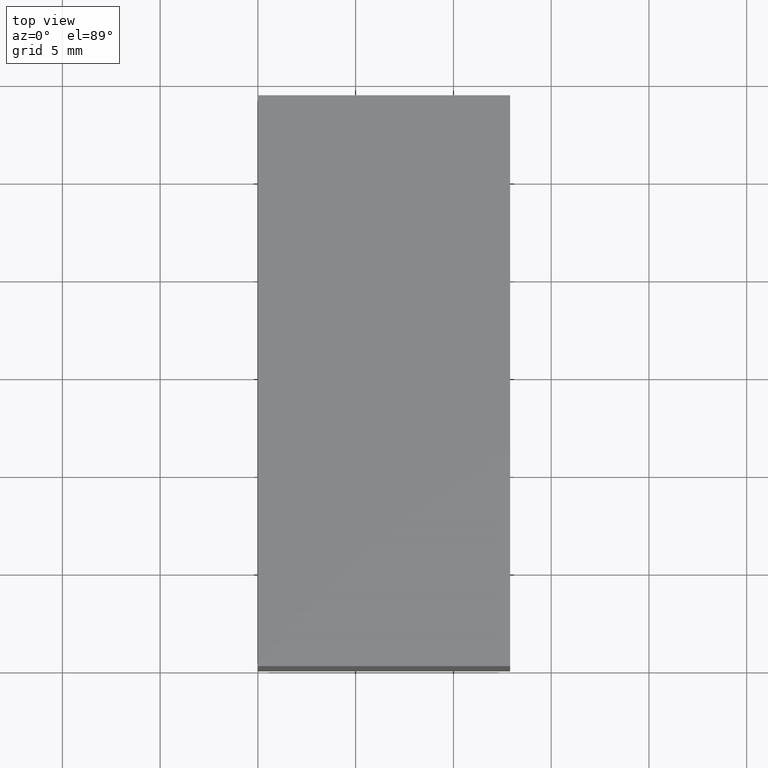
[diagram: clean part render]
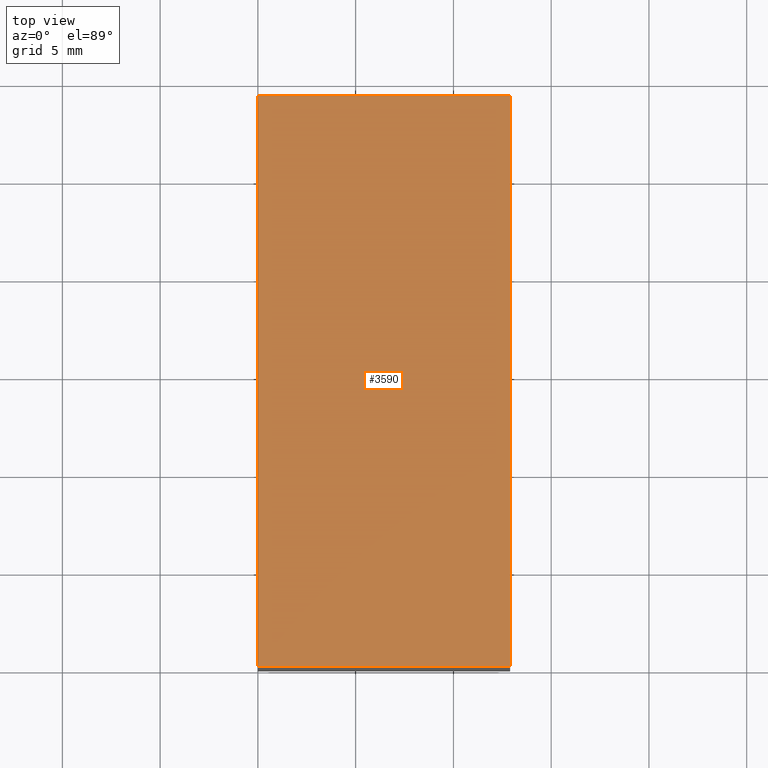
[diagram: same view with one face highlighted and labeled with its STEP entity id]
A machine part, top view. The second image highlights one B-rep face of the part: STEP entity #3590.
In plain terms, the highlighted planar face has unit normal (0, -0, -1).
Its self-contained STEP definition (entity closure, byte-faithful):
#3200=CARTESIAN_POINT('',(0.,0.,-15.9));
#3210=DIRECTION('',(0.,0.,1.));
#3220=DIRECTION('',(1.,0.,0.));
#3230=AXIS2_PLACEMENT_3D('',#3200,#3210,#3220);
#3240=PLANE('',#3230);
#3250=CARTESIAN_POINT('',(28.8,-6.45,-15.9));
#3260=DIRECTION('',(-1.,0.,0.));
#3270=VECTOR('',#3260,1.);
#3280=LINE('',#3250,#3270);
#3290=CARTESIAN_POINT('',(29.2,-6.45,-15.9));
#3300=VERTEX_POINT('',#3290);
#3310=CARTESIAN_POINT('',(0.,-6.45,-15.9));
#3320=VERTEX_POINT('',#3310);
#3330=EDGE_CURVE('',#3300,#3320,#3280,.T.);
#3340=ORIENTED_EDGE('',*,*,#3330,.T.);
#3350=CARTESIAN_POINT('',(29.2,6.3,-15.9));
#3360=DIRECTION('',(0.,-1.,0.));
#3370=VECTOR('',#3360,1.);
#3380=LINE('',#3350,#3370);
#3390=CARTESIAN_POINT('',(29.2,6.45,-15.9));
#3400=VERTEX_POINT('',#3390);
#3410=EDGE_CURVE('',#3400,#3300,#3380,.T.);
#3420=ORIENTED_EDGE('',*,*,#3410,.T.);
#3430=CARTESIAN_POINT('',(0.,6.45,-15.9));
#3440=DIRECTION('',(1.,0.,0.));
#3450=VECTOR('',#3440,1.);
#3460=LINE('',#3430,#3450);
#3470=CARTESIAN_POINT('',(0.,6.45,-15.9));
#3480=VERTEX_POINT('',#3470);
#3490=EDGE_CURVE('',#3480,#3400,#3460,.T.);
#3500=ORIENTED_EDGE('',*,*,#3490,.T.);
#3510=CARTESIAN_POINT('',(0.,-6.3,-15.9));
#3520=DIRECTION('',(0.,1.,0.));
#3530=VECTOR('',#3520,1.);
#3540=LINE('',#3510,#3530);
#3550=EDGE_CURVE('',#3320,#3480,#3540,.T.);
#3560=ORIENTED_EDGE('',*,*,#3550,.T.);
#3570=EDGE_LOOP('',(#3560,#3500,#3420,#3340));
#3580=FACE_OUTER_BOUND('',#3570,.T.);
#3590=ADVANCED_FACE('',(#3580),#3240,.F.);